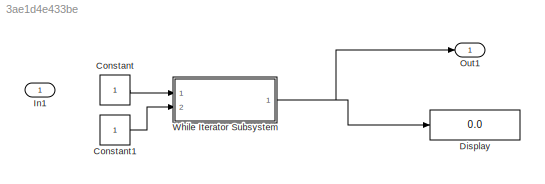
MODEL slx_3ae1d4e433be
KIND model
CONFIG AbsTol = auto
CONFIG EnableMultiTasking = off
CONFIG FixedStep = auto
CONFIG MaxStep = auto
CONFIG MinStep = auto
CONFIG RelTol = 1e-3
CONFIG SampleTimeConstraint = Unconstrained
CONFIG SolverName = VariableStepAuto
CONFIG StartTime = 0.0
CONFIG StopTime = 10.0
BLOCK [Constant] Constant
BLOCK [Constant] Constant1
BLOCK [Display] Display
  Decimation = 1
  Ports = [1]
BLOCK [Inport] In1
BLOCK [Outport] Out1
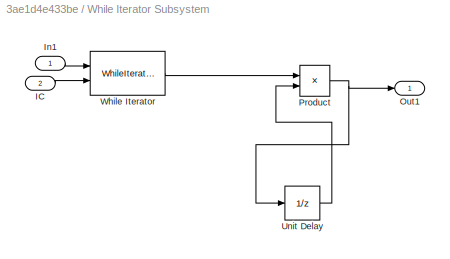
BLOCK [SubSystem] While Iterator Subsystem
  Ports = [2, 1]
  RequestExecContextInheritance = off
  TreatAsAtomicUnit = on
BLOCK [Inport] While Iterator Subsystem/IC
  Port = 2
BLOCK [Inport] While Iterator Subsystem/In1
BLOCK [Outport] While Iterator Subsystem/Out1
  OutDataTypeStr = int64
BLOCK [Product] While Iterator Subsystem/Product
  OutDataTypeStr = int64
  Ports = [2, 1]
BLOCK [UnitDelay] While Iterator Subsystem/Unit Delay
  HasFrameUpgradeWarning = on
  InitialCondition = 1
  SampleTime = -1
BLOCK [WhileIterator] While Iterator Subsystem/While Iterator
  Ports = [2, 1]
  ResetStates = reset
  ShowIterationPort = on
LINE Constant1:1 -> While Iterator Subsystem:2
LINE Constant:1 -> While Iterator Subsystem:1
LINE While Iterator Subsystem/IC:1 -> While Iterator Subsystem/While Iterator:2
LINE While Iterator Subsystem/In1:1 -> While Iterator Subsystem/While Iterator:1
NET While Iterator Subsystem/Product:1 -> While Iterator Subsystem/Out1:1, While Iterator Subsystem/Unit Delay:1
LINE While Iterator Subsystem/Unit Delay:1 -> While Iterator Subsystem/Product:2
LINE While Iterator Subsystem/While Iterator:1 -> While Iterator Subsystem/Product:1
NET While Iterator Subsystem:1 -> Display:1, Out1:1
note: NET lines group one-source signal fan-out (src -> all destinations, sorted); 1:1 wires keep LINE
